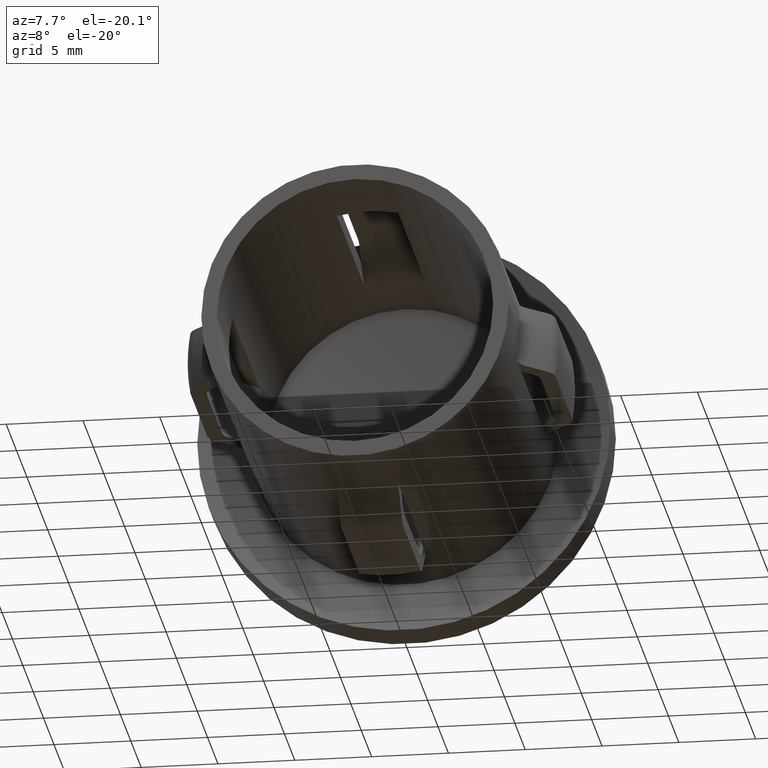
[diagram: clean part render]
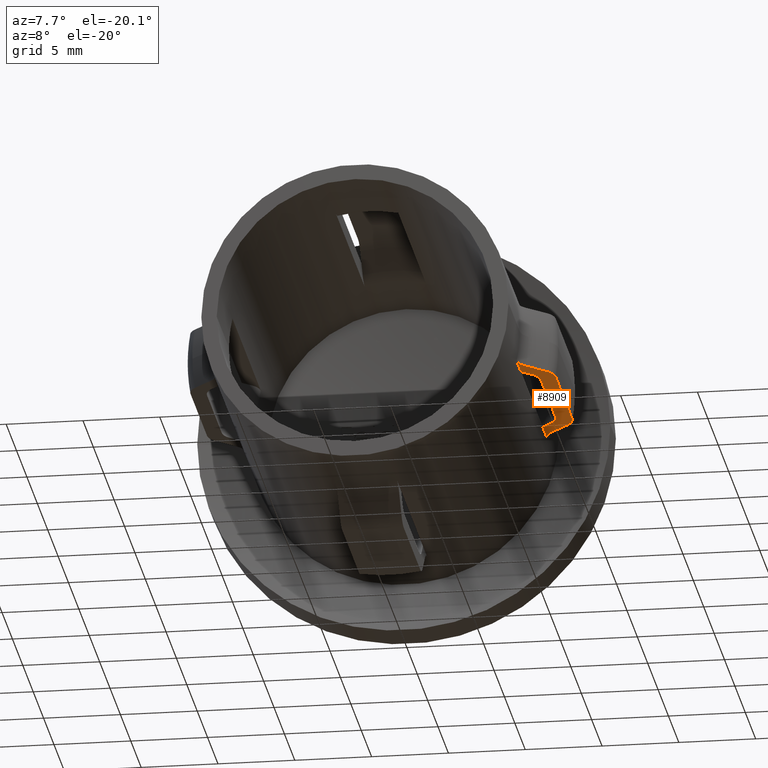
[diagram: same view with one face highlighted and labeled with its STEP entity id]
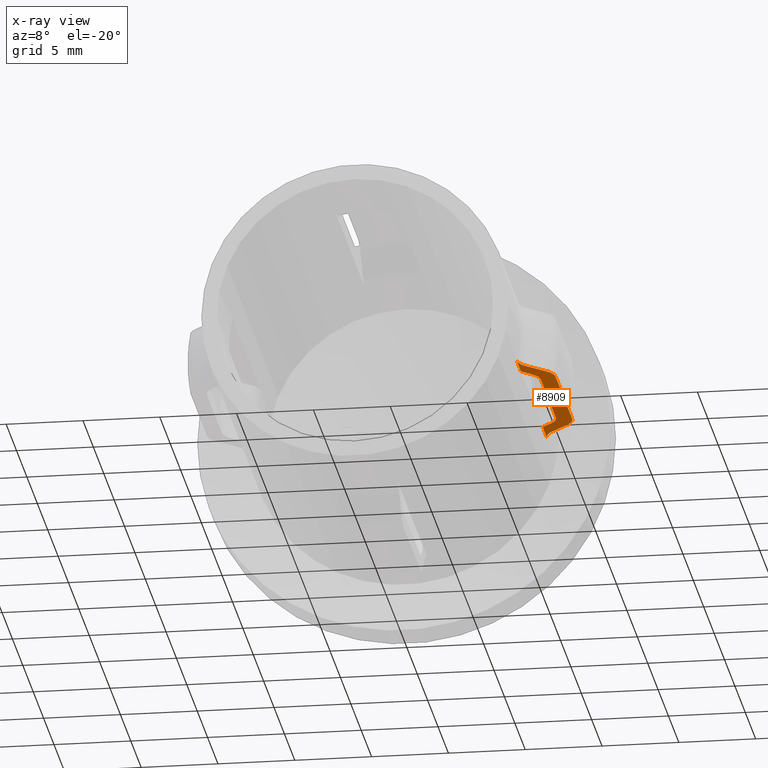
[diagram: x-ray of the same camera — body ghosted, the highlighted face saturated]
A machine part, auxiliary view. The second image highlights one B-rep face of the part: STEP entity #8909.
The next image is the same camera in x-ray: the body ghosted, the highlighted face saturated — about 0% of this face is hidden behind the body in this view.
In plain terms, the highlighted planar face has unit normal (0, -0, 1).
Its self-contained STEP definition (entity closure, byte-faithful):
#134 = VERTEX_POINT ( 'NONE', #3651 ) ;
#200 = CARTESIAN_POINT ( 'NONE',  ( 9.797958971132716854, 5.414718625761427262, -2.000000000000002220 ) ) ;
#225 = CARTESIAN_POINT ( 'NONE',  ( 10.85773441581807575, 16.48904045060757539, -2.000000000000002665 ) ) ;
#246 = CARTESIAN_POINT ( 'NONE',  ( 10.55418621259248191, 8.205802052683653258, -2.000000000000002665 ) ) ;
#299 = CARTESIAN_POINT ( 'NONE',  ( 10.03416476362935761, 7.681722625402083615, -2.000000000000002220 ) ) ;
#440 = CARTESIAN_POINT ( 'NONE',  ( 10.17611170401977994, 6.406818607882890149, -2.000000000000001776 ) ) ;
#442 = CARTESIAN_POINT ( 'NONE',  ( 11.57798679256842256, 17.62924608409564442, -2.000000000000002665 ) ) ;
#527 = CARTESIAN_POINT ( 'NONE',  ( 10.11199452816316402, 6.330368194126904768, -2.000000000000002665 ) ) ;
#538 = ORIENTED_EDGE ( 'NONE', *, *, #5104, .T. ) ;
#689 = CARTESIAN_POINT ( 'NONE',  ( 10.22927248926903587, 17.54152635645386482, -2.000000000000002220 ) ) ;
#1109 = DIRECTION ( 'NONE',  ( 1.755283850131976769E-16, -4.299205497318403178E-33, 1.000000000000000000 ) ) ;
#1161 = VERTEX_POINT ( 'NONE', #6787 ) ;
#1182 = B_SPLINE_CURVE_WITH_KNOTS ( 'NONE', 3,
 ( #6007, #8262, #225, #1527, #1328, #10331, #5871, #9246 ),
 .UNSPECIFIED., .F., .F.,
 ( 4, 2, 2, 4 ),
 ( 0.008292909136274895232, 0.008586519548493723453, 0.008880129960712549939, 0.009467350785150204645 ),
 .UNSPECIFIED. ) ;
#1254 = VERTEX_POINT ( 'NONE', #4971 ) ;
#1287 = B_SPLINE_CURVE_WITH_KNOTS ( 'NONE', 3,
 ( #13652, #6904, #12844, #14090 ),
 .UNSPECIFIED., .F., .F.,
 ( 4, 4 ),
 ( 0.002561914376716938231, 0.004232485004038223121 ),
 .UNSPECIFIED. ) ;
#1328 = CARTESIAN_POINT ( 'NONE',  ( 10.78924037778888412, 16.77740935275306100, -2.000000000000002220 ) ) ;
#1412 = CARTESIAN_POINT ( 'NONE',  ( 10.42046588598584123, 8.060912703473993801, -2.000000000000002220 ) ) ;
#1416 = B_SPLINE_CURVE_WITH_KNOTS ( 'NONE', 3,
 ( #7152, #442, #10308, #2535, #8093, #10355 ),
 .UNSPECIFIED., .F., .F.,
 ( 4, 2, 4 ),
 ( 0.008609583659681776732, 0.009196613660134632037, 0.009783643660587487342 ),
 .UNSPECIFIED. ) ;
#1527 = CARTESIAN_POINT ( 'NONE',  ( 10.81878208188815016, 16.68184691326871416, -2.000000000000001776 ) ) ;
#1582 = CARTESIAN_POINT ( 'NONE',  ( 11.88286581595550118, 20.00000000000000000, -2.000000000000002665 ) ) ;
#1745 = ORIENTED_EDGE ( 'NONE', *, *, #5092, .F. ) ;
#1882 = EDGE_CURVE ( 'NONE', #6369, #1254, #3521, .T. ) ;
#1914 = VERTEX_POINT ( 'NONE', #7986 ) ;
#2048 = LINE ( 'NONE', #13882, #6298 ) ;
#2137 = CARTESIAN_POINT ( 'NONE',  ( 11.68987759699574092, 7.949946286326727396, -2.000000000000002220 ) ) ;
#2444 = CARTESIAN_POINT ( 'NONE',  ( 10.64338749788787020, 18.54927984631036963, -2.000000000000002220 ) ) ;
#2453 = DIRECTION ( 'NONE',  ( 2.904862207577519418E-15, 1.000000000000000000, 0.000000000000000000 ) ) ;
#2464 = VERTEX_POINT ( 'NONE', #7310 ) ;
#2481 = ORIENTED_EDGE ( 'NONE', *, *, #1882, .T. ) ;
#2531 = CARTESIAN_POINT ( 'NONE',  ( 10.42046588598584123, 8.060912703473993801, -2.000000000000002220 ) ) ;
#2535 = CARTESIAN_POINT ( 'NONE',  ( 11.84333999333062870, 17.10036544985326401, -2.000000000000002220 ) ) ;
#2587 = CARTESIAN_POINT ( 'NONE',  ( 10.24596584266530286, 18.93933982822018436, -2.000000000000002220 ) ) ;
#2656 = ORIENTED_EDGE ( 'NONE', *, *, #13101, .T. ) ;
#2927 = CARTESIAN_POINT ( 'NONE',  ( 9.909888828826197482, 17.85479767873471246, -2.000000000000002220 ) ) ;
#2975 = VERTEX_POINT ( 'NONE', #5174 ) ;
#3140 = CARTESIAN_POINT ( 'NONE',  ( 11.88286581595550118, 8.707359312880743829, -2.000000000000002665 ) ) ;
#3260 = CARTESIAN_POINT ( 'NONE',  ( 9.876154369981225756, 19.51651431633856504, -2.000000000000001776 ) ) ;
#3384 = PLANE ( 'NONE',  #13996 ) ;
#3521 = B_SPLINE_CURVE_WITH_KNOTS ( 'NONE', 3,
 ( #7493, #4162, #9989, #14597, #3260, #7827, #11273, #6705 ),
 .UNSPECIFIED., .F., .F.,
 ( 4, 2, 2, 4 ),
 ( 0.008551085924792166393, 0.008844617867056077040, 0.009138149809319985953, 0.009725213693847808982 ),
 .UNSPECIFIED. ) ;
#3537 = ORIENTED_EDGE ( 'NONE', *, *, #7750, .T. ) ;
#3592 = CARTESIAN_POINT ( 'NONE',  ( 11.88286581595550118, 16.70735931288071896, -2.000000000000002665 ) ) ;
#3593 = DIRECTION ( 'NONE',  ( -2.449293598294745364E-17, -1.000000000000000000, -0.000000000000000000 ) ) ;
#3651 = CARTESIAN_POINT ( 'NONE',  ( 10.86749741200796215, 9.121572875253814772, -2.000000000000002220 ) ) ;
#3690 = ORIENTED_EDGE ( 'NONE', *, *, #6884, .F. ) ;
#3782 = CARTESIAN_POINT ( 'NONE',  ( 10.86749741200796215, 9.121572875253814772, -2.000000000000002220 ) ) ;
#4162 = CARTESIAN_POINT ( 'NONE',  ( 9.797958971132704420, 19.90172383299794134, -2.000000000000002665 ) ) ;
#4188 = ORIENTED_EDGE ( 'NONE', *, *, #6991, .T. ) ;
#4329 = EDGE_CURVE ( 'NONE', #5425, #14283, #5619, .T. ) ;
#4847 = CARTESIAN_POINT ( 'NONE',  ( 10.49125848126133498, 8.130436353473704969, -2.000000000000001776 ) ) ;
#4971 = CARTESIAN_POINT ( 'NONE',  ( 10.24596584266530286, 18.93933982822018436, -2.000000000000002220 ) ) ;
#5089 = CARTESIAN_POINT ( 'NONE',  ( 10.86749741200802433, 16.29314575050761249, -2.000000000000002220 ) ) ;
#5092 = EDGE_CURVE ( 'NONE', #2975, #14283, #2048, .T. ) ;
#5104 = EDGE_CURVE ( 'NONE', #134, #5634, #5414, .T. ) ;
#5174 = CARTESIAN_POINT ( 'NONE',  ( 9.797958971132716854, 7.450252531694169456, -2.000000000000002220 ) ) ;
#5293 = EDGE_CURVE ( 'NONE', #1161, #13583, #10587, .T. ) ;
#5414 = LINE ( 'NONE', #11504, #8222 ) ;
#5425 = VERTEX_POINT ( 'NONE', #11320 ) ;
#5600 = VERTEX_POINT ( 'NONE', #3592 ) ;
#5619 = B_SPLINE_CURVE_WITH_KNOTS ( 'NONE', 3,
 ( #9456, #440, #527, #10495, #9309, #8376, #7197, #8290 ),
 .UNSPECIFIED., .F., .F.,
 ( 4, 2, 2, 4 ),
 ( 0.008426157723448655240, 0.008719793217878494748, 0.009013428712308334256, 0.009600699701168015007 ),
 .UNSPECIFIED. ) ;
#5634 = VERTEX_POINT ( 'NONE', #5089 ) ;
#5758 = CARTESIAN_POINT ( 'NONE',  ( 9.797958971132716854, 17.96446609406725869, -2.000000000000002220 ) ) ;
#5858 = B_SPLINE_CURVE_WITH_KNOTS ( 'NONE', 3,
 ( #2587, #2444, #10421, #8105 ),
 .UNSPECIFIED., .F., .F.,
 ( 4, 4 ),
 ( 0.004138614694279914470, 0.005809177398622833097 ),
 .UNSPECIFIED. ) ;
#5871 = CARTESIAN_POINT ( 'NONE',  ( 10.56202745676467813, 17.21478181867975010, -2.000000000000002220 ) ) ;
#5891 = CARTESIAN_POINT ( 'NONE',  ( 10.81824200377731593, 8.730858571489125808, -2.000000000000002220 ) ) ;
#5898 = FACE_OUTER_BOUND ( 'NONE', #10875, .T. ) ;
#6007 = CARTESIAN_POINT ( 'NONE',  ( 10.86749741200802433, 16.29314575050761249, -2.000000000000002220 ) ) ;
#6107 = B_SPLINE_CURVE_WITH_KNOTS ( 'NONE', 3,
 ( #13979, #7205, #9463, #7024, #299, #8150, #1412 ),
 .UNSPECIFIED., .F., .F.,
 ( 4, 3, 4 ),
 ( 0.002679849303129546844, 0.002739909218080248746, 0.003551868367306841752 ),
 .UNSPECIFIED. ) ;
#6298 = VECTOR ( 'NONE', #9243, 1000.000000000000000 ) ;
#6340 = CARTESIAN_POINT ( 'NONE',  ( 10.02178115446103845, 17.74509094668710318, -2.000000000000002220 ) ) ;
#6369 = VERTEX_POINT ( 'NONE', #13542 ) ;
#6396 = CARTESIAN_POINT ( 'NONE',  ( 10.32488065075581218, 17.44767780837115723, -2.000000000000002220 ) ) ;
#6477 = CARTESIAN_POINT ( 'NONE',  ( 11.43710757248327425, 17.76801948466053815, -2.000000000000002665 ) ) ;
#6538 = EDGE_CURVE ( 'NONE', #5634, #1161, #1182, .T. ) ;
#6607 = ORIENTED_EDGE ( 'NONE', *, *, #8219, .T. ) ;
#6705 = CARTESIAN_POINT ( 'NONE',  ( 10.24596584266530286, 18.93933982822018436, -2.000000000000002220 ) ) ;
#6787 = CARTESIAN_POINT ( 'NONE',  ( 10.42046588598583590, 17.35380592228743524, -2.000000000000002220 ) ) ;
#6826 = CARTESIAN_POINT ( 'NONE',  ( 9.797958971132716854, 20.00000000000000000, -2.000000000000002220 ) ) ;
#6859 = ORIENTED_EDGE ( 'NONE', *, *, #12957, .T. ) ;
#6884 = EDGE_CURVE ( 'NONE', #6369, #13583, #11881, .T. ) ;
#6904 = CARTESIAN_POINT ( 'NONE',  ( 11.04039648647892413, 7.255917971150165791, -2.000000000000002665 ) ) ;
#6991 = EDGE_CURVE ( 'NONE', #2975, #1914, #6107, .T. ) ;
#7014 = CARTESIAN_POINT ( 'NONE',  ( 10.66468826280363835, 8.367938021064233567, -2.000000000000002220 ) ) ;
#7024 = CARTESIAN_POINT ( 'NONE',  ( 9.840857202254476022, 7.492287707651468232, -2.000000000000002220 ) ) ;
#7152 = CARTESIAN_POINT ( 'NONE',  ( 11.43710757248327425, 17.76801948466053815, -2.000000000000002665 ) ) ;
#7197 = CARTESIAN_POINT ( 'NONE',  ( 9.797958971132727513, 5.610933610141438876, -2.000000000000002220 ) ) ;
#7205 = CARTESIAN_POINT ( 'NONE',  ( 9.812258992244801803, 7.464263633708416279, -2.000000000000002220 ) ) ;
#7310 = CARTESIAN_POINT ( 'NONE',  ( 11.43710757248327603, 7.646699141100893549, -2.000000000000002665 ) ) ;
#7493 = CARTESIAN_POINT ( 'NONE',  ( 9.797958971132716854, 20.00000000000000000, -2.000000000000002220 ) ) ;
#7523 = ORIENTED_EDGE ( 'NONE', *, *, #12740, .T. ) ;
#7658 = CARTESIAN_POINT ( 'NONE',  ( 11.88286581595534486, 8.510025997912103790, -2.000000000000002665 ) ) ;
#7750 = EDGE_CURVE ( 'NONE', #1914, #134, #8071, .T. ) ;
#7785 = VECTOR ( 'NONE', #11691, 1000.000000000000000 ) ;
#7795 = CARTESIAN_POINT ( 'NONE',  ( 1.388019496325536698E-16, 20.00000000000000000, -2.000000000000000444 ) ) ;
#7827 = CARTESIAN_POINT ( 'NONE',  ( 9.991970481237844481, 19.24281738224882687, -2.000000000000001776 ) ) ;
#7898 = B_SPLINE_CURVE_WITH_KNOTS ( 'NONE', 3,
 ( #3140, #7658, #9819, #2137, #8787, #14515 ),
 .UNSPECIFIED., .F., .F.,
 ( 4, 2, 4 ),
 ( 0.008616956759455290590, 0.009203699429973462298, 0.009790442100491632271 ),
 .UNSPECIFIED. ) ;
#7986 = CARTESIAN_POINT ( 'NONE',  ( 10.42046588598584123, 8.060912703473993801, -2.000000000000002220 ) ) ;
#8071 = B_SPLINE_CURVE_WITH_KNOTS ( 'NONE', 3,
 ( #2531, #4847, #246, #7014, #11568, #12613, #5891, #9362, #10302, #3782 ),
 .UNSPECIFIED., .F., .F.,
 ( 4, 2, 2, 2, 4 ),
 ( 1.798185820398218282E-05, 0.0003120552849485282534, 0.0006061287116930743138, 0.0009002021384376203200, 0.001194275565182166326 ),
 .UNSPECIFIED. ) ;
#8093 = CARTESIAN_POINT ( 'NONE',  ( 11.88286581595534486, 16.90323624798876878, -2.000000000000002665 ) ) ;
#8105 = CARTESIAN_POINT ( 'NONE',  ( 11.43710757248327425, 17.76801948466053815, -2.000000000000002665 ) ) ;
#8150 = CARTESIAN_POINT ( 'NONE',  ( 10.22736199895438602, 7.871270170899602903, -2.000000000000002220 ) ) ;
#8219 = EDGE_CURVE ( 'NONE', #2464, #5425, #1287, .T. ) ;
#8222 = VECTOR ( 'NONE', #2453, 1000.000000000000000 ) ;
#8262 = CARTESIAN_POINT ( 'NONE',  ( 10.86749741200799235, 16.39160956397682511, -2.000000000000001776 ) ) ;
#8290 = CARTESIAN_POINT ( 'NONE',  ( 9.797958971132716854, 5.414718625761427262, -2.000000000000002220 ) ) ;
#8376 = CARTESIAN_POINT ( 'NONE',  ( 9.838866221195742057, 5.810867761781919327, -2.000000000000002665 ) ) ;
#8787 = CARTESIAN_POINT ( 'NONE',  ( 11.57659586452328249, 7.784102404787918594, -2.000000000000002665 ) ) ;
#8819 = ORIENTED_EDGE ( 'NONE', *, *, #14345, .T. ) ;
#8909 = ADVANCED_FACE ( 'NONE', ( #5898 ), #3384, .F. ) ;
#9243 = DIRECTION ( 'NONE',  ( -2.449293598294745364E-17, -1.000000000000000000, -0.000000000000000000 ) ) ;
#9246 = CARTESIAN_POINT ( 'NONE',  ( 10.42046588598583590, 17.35380592228743524, -2.000000000000002220 ) ) ;
#9309 = CARTESIAN_POINT ( 'NONE',  ( 9.954065724113767999, 6.081926190087629358, -2.000000000000002220 ) ) ;
#9362 = CARTESIAN_POINT ( 'NONE',  ( 10.85750275643485274, 8.923884257141324383, -2.000000000000002220 ) ) ;
#9456 = CARTESIAN_POINT ( 'NONE',  ( 10.24596584266530819, 6.475378797541251785, -2.000000000000002220 ) ) ;
#9463 = CARTESIAN_POINT ( 'NONE',  ( 9.826558400037370689, 7.478275361715982505, -2.000000000000002220 ) ) ;
#9819 = CARTESIAN_POINT ( 'NONE',  ( 11.84352778200033818, 8.315006248407279088, -2.000000000000002665 ) ) ;
#9989 = CARTESIAN_POINT ( 'NONE',  ( 9.808040498164391607, 19.80220780296832217, -2.000000000000002220 ) ) ;
#10015 = ORIENTED_EDGE ( 'NONE', *, *, #5293, .T. ) ;
#10302 = CARTESIAN_POINT ( 'NONE',  ( 10.86749741200797104, 9.023478673585810128, -2.000000000000002220 ) ) ;
#10308 = CARTESIAN_POINT ( 'NONE',  ( 11.68959653606003890, 17.46523258207295370, -2.000000000000002665 ) ) ;
#10331 = CARTESIAN_POINT ( 'NONE',  ( 10.67494698003791065, 17.04837425921792615, -2.000000000000002665 ) ) ;
#10355 = CARTESIAN_POINT ( 'NONE',  ( 11.88286581595550118, 16.70735931288071896, -2.000000000000002665 ) ) ;
#10421 = CARTESIAN_POINT ( 'NONE',  ( 11.04039648647892058, 18.15880065461126591, -2.000000000000002665 ) ) ;
#10495 = CARTESIAN_POINT ( 'NONE',  ( 10.00101974118111769, 6.167751309589712960, -2.000000000000001776 ) ) ;
#10528 = VERTEX_POINT ( 'NONE', #6477 ) ;
#10587 = B_SPLINE_CURVE_WITH_KNOTS ( 'NONE', 3,
 ( #12031, #6396, #689, #11926, #6340, #2927, #14269 ),
 .UNSPECIFIED., .F., .F.,
 ( 4, 3, 4 ),
 ( 0.002337988813253523163, 0.002739904172749603722, 0.003210009343676469874 ),
 .UNSPECIFIED. ) ;
#10875 = EDGE_LOOP ( 'NONE', ( #2481, #2656, #8819, #7523, #6859, #6607, #12305, #1745, #4188, #3537, #538, #12887, #10015, #3690 ) ) ;
#11273 = CARTESIAN_POINT ( 'NONE',  ( 10.10629499283181865, 19.07642347336997801, -2.000000000000002665 ) ) ;
#11320 = CARTESIAN_POINT ( 'NONE',  ( 10.24596584266530819, 6.475378797541251785, -2.000000000000002220 ) ) ;
#11504 = CARTESIAN_POINT ( 'NONE',  ( 10.86749741200801012, 25.49999999999996803, -2.000000000000002220 ) ) ;
#11568 = CARTESIAN_POINT ( 'NONE',  ( 10.71263851394375521, 8.455790071252764051, -2.000000000000002220 ) ) ;
#11654 = LINE ( 'NONE', #1582, #7785 ) ;
#11691 = DIRECTION ( 'NONE',  ( -2.449293598294745364E-17, -1.000000000000000000, -0.000000000000000000 ) ) ;
#11881 = LINE ( 'NONE', #6826, #13122 ) ;
#11926 = CARTESIAN_POINT ( 'NONE',  ( 10.13363945630756113, 17.63534954760340412, -2.000000000000002220 ) ) ;
#12031 = CARTESIAN_POINT ( 'NONE',  ( 10.42046588598583590, 17.35380592228743524, -2.000000000000002220 ) ) ;
#12305 = ORIENTED_EDGE ( 'NONE', *, *, #4329, .T. ) ;
#12613 = CARTESIAN_POINT ( 'NONE',  ( 10.78925013755777051, 8.637245625406610117, -2.000000000000002220 ) ) ;
#12702 = CARTESIAN_POINT ( 'NONE',  ( 11.88286581595550118, 8.707359312880743829, -2.000000000000002665 ) ) ;
#12710 = VERTEX_POINT ( 'NONE', #12702 ) ;
#12740 = EDGE_CURVE ( 'NONE', #5600, #12710, #11654, .T. ) ;
#12844 = CARTESIAN_POINT ( 'NONE',  ( 10.64338749788787730, 6.865438779451059403, -2.000000000000002220 ) ) ;
#12887 = ORIENTED_EDGE ( 'NONE', *, *, #6538, .T. ) ;
#12957 = EDGE_CURVE ( 'NONE', #12710, #2464, #7898, .T. ) ;
#13101 = EDGE_CURVE ( 'NONE', #1254, #10528, #5858, .T. ) ;
#13122 = VECTOR ( 'NONE', #3593, 1000.000000000000000 ) ;
#13542 = CARTESIAN_POINT ( 'NONE',  ( 9.797958971132716854, 20.00000000000000000, -2.000000000000002220 ) ) ;
#13576 = DIRECTION ( 'NONE',  ( 1.000000000000000000, 0.000000000000000000, -1.755283850131976769E-16 ) ) ;
#13583 = VERTEX_POINT ( 'NONE', #5758 ) ;
#13652 = CARTESIAN_POINT ( 'NONE',  ( 11.43710757248327603, 7.646699141100893549, -2.000000000000002665 ) ) ;
#13882 = CARTESIAN_POINT ( 'NONE',  ( 9.797958971132716854, 20.00000000000000000, -2.000000000000002220 ) ) ;
#13979 = CARTESIAN_POINT ( 'NONE',  ( 9.797958971132716854, 7.450252531694169456, -2.000000000000002220 ) ) ;
#13996 = AXIS2_PLACEMENT_3D ( 'NONE', #7795, #1109, #13576 ) ;
#14090 = CARTESIAN_POINT ( 'NONE',  ( 10.24596584266530819, 6.475378797541251785, -2.000000000000002220 ) ) ;
#14269 = CARTESIAN_POINT ( 'NONE',  ( 9.797958971132716854, 17.96446609406725869, -2.000000000000002220 ) ) ;
#14283 = VERTEX_POINT ( 'NONE', #200 ) ;
#14345 = EDGE_CURVE ( 'NONE', #10528, #5600, #1416, .T. ) ;
#14515 = CARTESIAN_POINT ( 'NONE',  ( 11.43710757248327603, 7.646699141100893549, -2.000000000000002665 ) ) ;
#14597 = CARTESIAN_POINT ( 'NONE',  ( 9.847185022925405207, 19.61016997431843478, -2.000000000000002220 ) ) ;